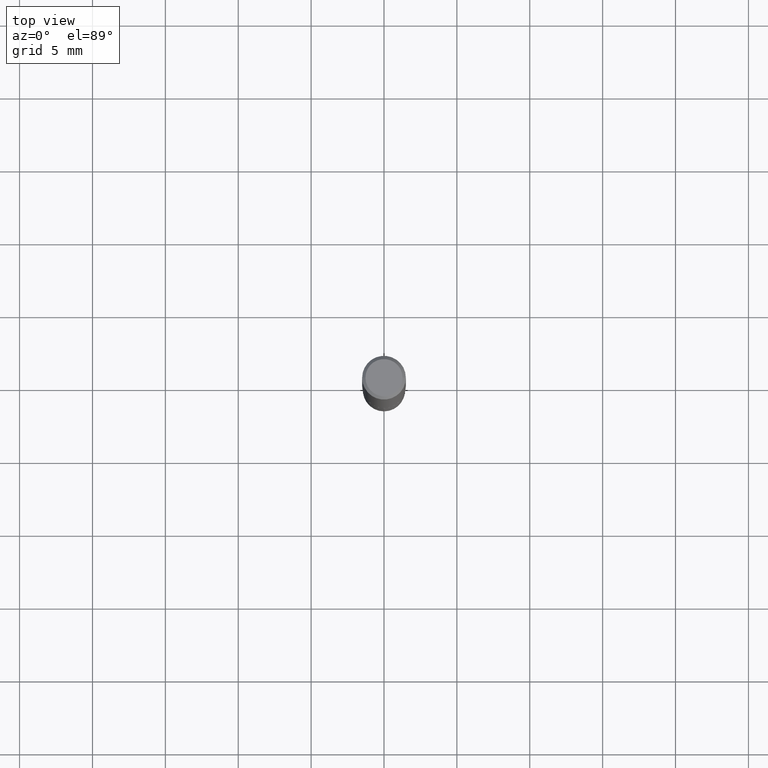
[diagram: clean part render]
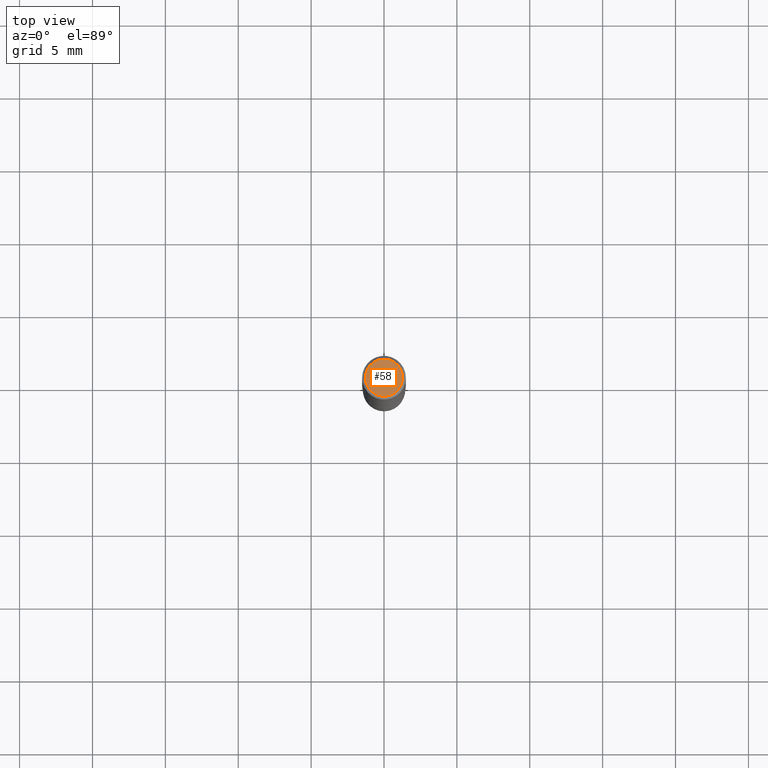
[diagram: same view with one face highlighted and labeled with its STEP entity id]
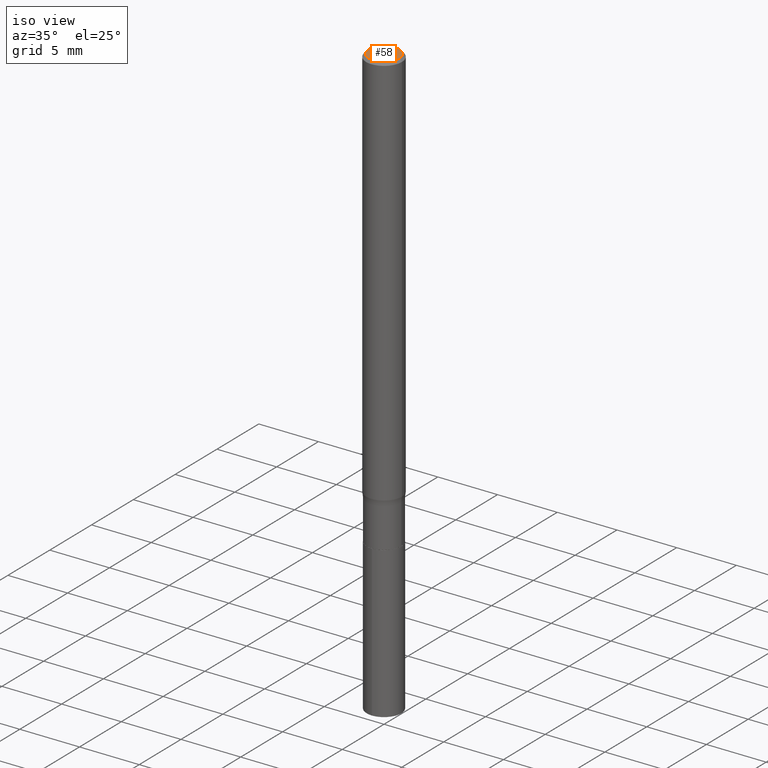
[diagram: same view with one face highlighted and labeled with its STEP entity id]
A machine part, top view. The second image highlights one B-rep face of the part: STEP entity #58.
A second angle (iso view) of the same face is appended — the face is thin or edge-on in the first view.
In plain terms, the highlighted planar face has unit normal (0, -0, -1).
Its self-contained STEP definition (entity closure, byte-faithful):
#11 = DIRECTION ( 'NONE',  ( 2.438088387897960049E-29, -3.491481338843145188E-15, -1.000000000000000000 ) ) ;
#19 = ORIENTED_EDGE ( 'NONE', *, *, #426, .T. ) ;
#56 = CARTESIAN_POINT ( 'NONE',  ( 8.782355238379090331E-48, -1.253887571509286098E-33, -3.591276738499609681E-19 ) ) ;
#58 = ADVANCED_FACE ( 'NONE', ( #390 ), #465, .F. ) ;
#71 = VERTEX_POINT ( 'NONE', #385 ) ;
#160 = EDGE_CURVE ( 'NONE', #71, #173, #213, .T. ) ;
#161 = DIRECTION ( 'NONE',  ( 1.000000000000000000, -6.982962677686266711E-15, 4.876140833081945105E-29 ) ) ;
#169 = CARTESIAN_POINT ( 'NONE',  ( 0.05019250000000000100, -3.901918742401799179E-16, -3.591276738473711219E-19 ) ) ;
#173 = VERTEX_POINT ( 'NONE', #169 ) ;
#213 = CIRCLE ( 'NONE', #375, 0.05019250000000000100 ) ;
#244 = DIRECTION ( 'NONE',  ( -1.000000000000000000, 6.982962677686265922E-15, -4.876176775795935793E-29 ) ) ;
#246 = CARTESIAN_POINT ( 'NONE',  ( 8.782355238379090331E-48, -1.253887571509286098E-33, -3.591276738499609681E-19 ) ) ;
#256 = DIRECTION ( 'NONE',  ( -2.445468806185136597E-29, 3.491481338843145583E-15, 1.000000000000000000 ) ) ;
#300 = DIRECTION ( 'NONE',  ( 1.000000000000000000, -6.982962677686266711E-15, 4.876140833081945105E-29 ) ) ;
#318 = CIRCLE ( 'NONE', #404, 0.05019250000000000100 ) ;
#320 = DIRECTION ( 'NONE',  ( -2.445468806185136597E-29, 3.491481338843145583E-15, 1.000000000000000000 ) ) ;
#344 = ORIENTED_EDGE ( 'NONE', *, *, #160, .T. ) ;
#375 = AXIS2_PLACEMENT_3D ( 'NONE', #56, #256, #300 ) ;
#385 = CARTESIAN_POINT ( 'NONE',  ( -0.05019250000000000100, 3.659552521791693345E-16, -3.591276738524661214E-19 ) ) ;
#390 = FACE_OUTER_BOUND ( 'NONE', #456, .T. ) ;
#397 = AXIS2_PLACEMENT_3D ( 'NONE', #423, #11, #244 ) ;
#404 = AXIS2_PLACEMENT_3D ( 'NONE', #246, #320, #161 ) ;
#423 = CARTESIAN_POINT ( 'NONE',  ( 4.391177619189545165E-48, -6.269437857546430492E-34, -1.795638369249804840E-19 ) ) ;
#426 = EDGE_CURVE ( 'NONE', #173, #71, #318, .T. ) ;
#456 = EDGE_LOOP ( 'NONE', ( #344, #19 ) ) ;
#465 = PLANE ( 'NONE',  #397 ) ;